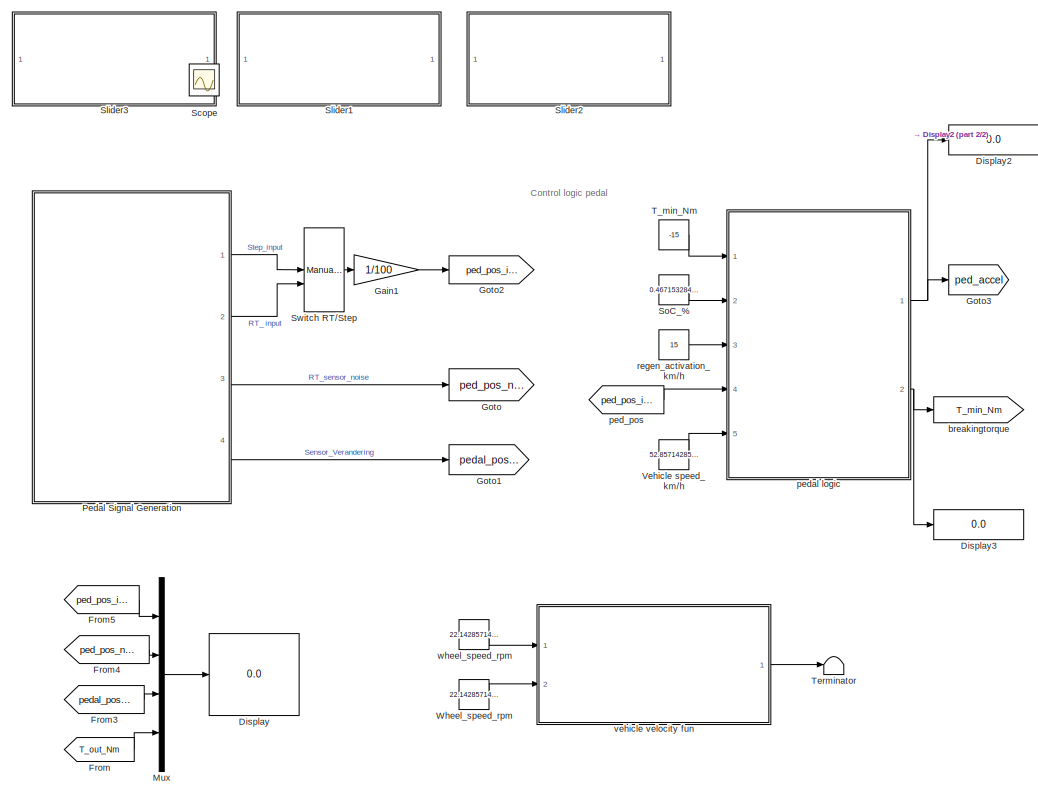
[diagram: root canvas - part 1/2, left side, full height]
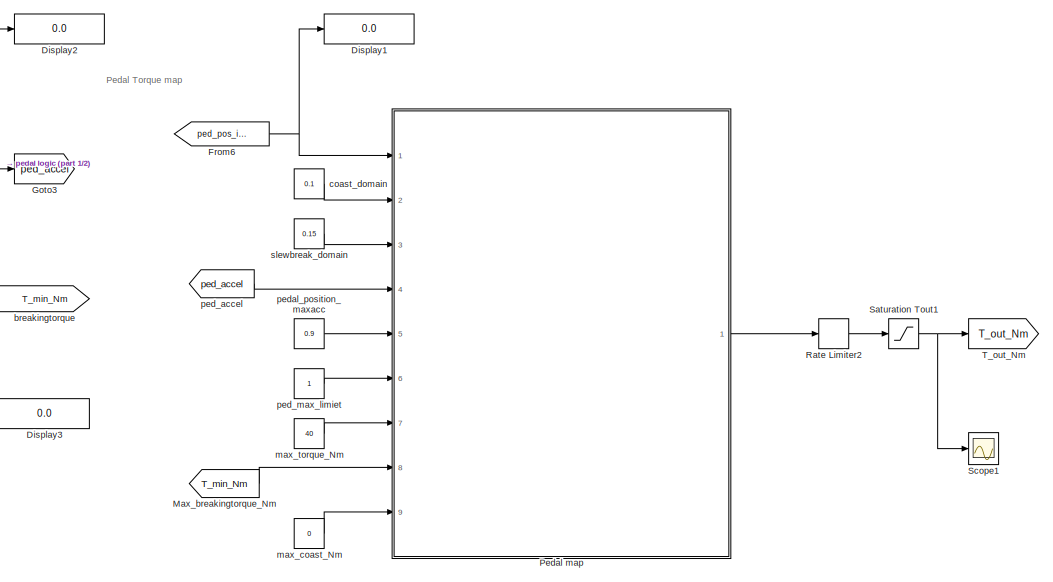
[diagram: root canvas - part 2/2, middle right region]
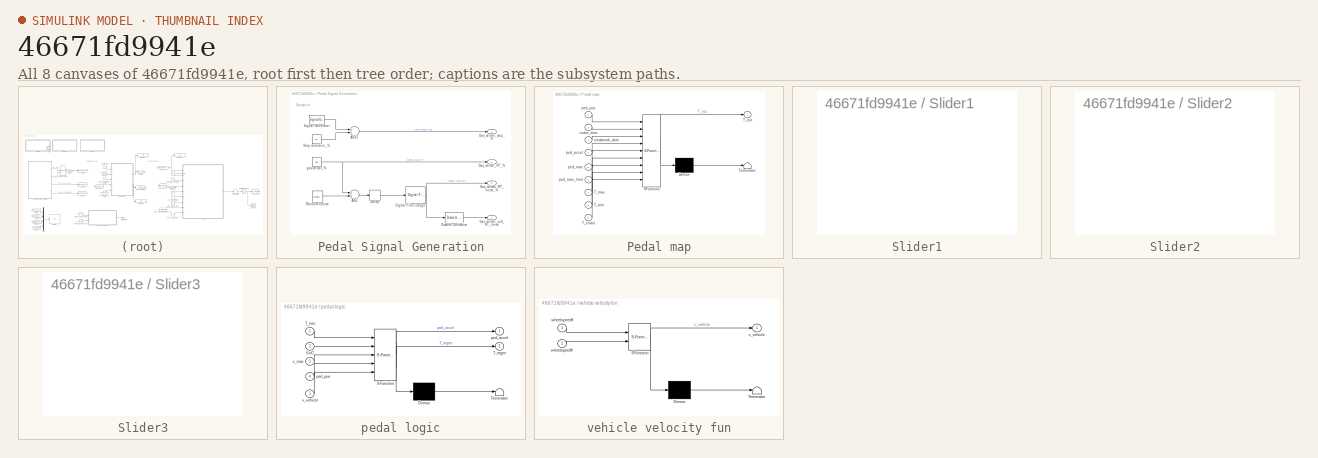
[diagram: thumbnail index - all 8 canvases of the model, root first then tree order]
MODEL slx_46671fd9941e
KIND model
CONFIG AbsTol = auto
CONFIG FixedStep = 0.001
CONFIG MaxStep = auto
CONFIG MinStep = auto
CONFIG RelTol = 1e-3
CONFIG SampleTimeConstraint = Unconstrained
CONFIG Solver = ode4
CONFIG SolverMode = Auto
CONFIG SolverName = ode4
CONFIG StartTime = 0.0
CONFIG StopTime = inf
BLOCK [Display] Display
  Decimation = 1
  Ports = [1]
BLOCK [Display] Display1
  Decimation = 1
  Ports = [1]
BLOCK [Display] Display2
  Decimation = 1
  Ports = [1]
BLOCK [Display] Display3
  Decimation = 1
  Ports = [1]
BLOCK [From] From
  GotoTag = T_out_Nm
BLOCK [From] From3
  GotoTag = pedal_pos_jerk
BLOCK [From] From4
  GotoTag = ped_pos_noise
BLOCK [From] From5
  GotoTag = ped_pos_idle
BLOCK [From] From6
  GotoTag = ped_pos_idle
BLOCK [Gain] Gain1
  Gain = 1/100
  OutDataTypeStr = Inherit: Inherit via internal rule
  ParamDataTypeStr = Inherit: Inherit via internal rule
  SaturateOnIntegerOverflow = off
BLOCK [Goto] Goto
  GotoTag = ped_pos_noise
BLOCK [Goto] Goto1
  GotoTag = pedal_pos_jerk
BLOCK [Goto] Goto2
  GotoTag = ped_pos_idle
BLOCK [Goto] Goto3
  GotoTag = ped_accel
BLOCK [From] Max_breakingtorque_Nm
  GotoTag = T_min_Nm
BLOCK [Mux] Mux
  DisplayOption = bar
  Ports = [4, 1]
BLOCK [SubSystem] Pedal Signal Generation
  Ports = [0, 4]
  RequestExecContextInheritance = off
  Variant = off
BLOCK [Sum] Pedal Signal Generation/Add
  InputSameDT = off
  OutDataTypeStr = Inherit: Inherit via internal rule
  Ports = [2, 1]
  SaturateOnIntegerOverflow = off
BLOCK [Sum] Pedal Signal Generation/Add1
  InputSameDT = off
  OutDataTypeStr = Inherit: Inherit via internal rule
  Ports = [2, 1]
  SaturateOnIntegerOverflow = off
BLOCK [Delay] Pedal Signal Generation/Delay
  InputPortMap = u0
  Ports = [1, 1]
  SampleTime = 0.001
BLOCK [Reference] Pedal Signal Generation/Digital Filter Design  REF=dsparch4/Digital
Filter Design
  Ports = [1, 1]
  SourceBlock = dsparch4/Digital\nFilter Design
  SourceType = Digital Filter Design
  UserDataPersistent = on
BLOCK [Reference] Pedal Signal Generation/Discrete Derivative  REF=simulink/Discrete/Discrete Derivative
  Ports = [1, 1]
  SourceBlock = simulink/Discrete/Discrete Derivative
  SourceType = Discrete Derivative
BLOCK [Outport] Pedal Signal Generation/Gas_sensor_RT_%
  IconDisplay = Port number
  Port = 2
BLOCK [Outport] Pedal Signal Generation/Gas_sensor_RT_noise_%
  IconDisplay = Port number
  Port = 3
BLOCK [Outport] Pedal Signal Generation/Gas_sensor_jerk_RT_noise
  IconDisplay = Port number
  Port = 4
BLOCK [Outport] Pedal Signal Generation/Gas_sensor_step_%
  IconDisplay = Port number
BLOCK [Reference] Pedal Signal Generation/Random Source  REF=dspsrcs4/Random
Source
  Ports = [0, 1]
  SourceBlock = dspsrcs4/Random\nSource
  SourceType = Random Source
  UserDataPersistent = on
BLOCK [SignalGenerator] Pedal Signal Generation/Signal Generator
  Amplitude = 50
  Frequency = 0.25
  Ports = [0, 1]
  WaveForm = square
BLOCK [Constant] Pedal Signal Generation/Step correction_%
  Value = 50
BLOCK [Constant] Pedal Signal Generation/gas sensor_% 
  Value = 100
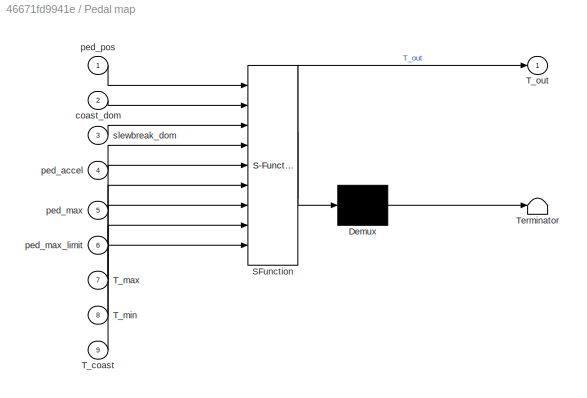
BLOCK [SubSystem] Pedal map
  ErrorFcn = Stateflow.Translate.translate
  PermitHierarchicalResolution = ExplicitOnly
  Ports = [9, 1]
  RequestExecContextInheritance = off
  SFBlockType = MATLAB Function
  TreatAsAtomicUnit = on
  Variant = off
BLOCK [Demux] Pedal map/ Demux 
  Outputs = 1
  Ports = [1, 1]
BLOCK [S-Function] Pedal map/ SFunction 
  EnableBusSupport = on
  FunctionName = sf_sfun
  PortCounts = [9 2]
  Ports = [9, 2]
  SFunctionDeploymentMode = off
  Tag = Stateflow S-Function RegenModelV2 1
BLOCK [Terminator] Pedal map/ Terminator 
BLOCK [Inport] Pedal map/T_coast
  IconDisplay = Port number
  Port = 9
BLOCK [Inport] Pedal map/T_max
  IconDisplay = Port number
  Port = 7
BLOCK [Inport] Pedal map/T_min
  IconDisplay = Port number
  Port = 8
BLOCK [Outport] Pedal map/T_out
  IconDisplay = Port number
BLOCK [Inport] Pedal map/coast_dom
  IconDisplay = Port number
  Port = 2
BLOCK [Inport] Pedal map/ped_accel
  IconDisplay = Port number
  Port = 4
BLOCK [Inport] Pedal map/ped_max
  IconDisplay = Port number
  Port = 5
BLOCK [Inport] Pedal map/ped_max_limit
  IconDisplay = Port number
  Port = 6
BLOCK [Inport] Pedal map/ped_pos
  IconDisplay = Port number
BLOCK [Inport] Pedal map/slewbreak_dom
  IconDisplay = Port number
  Port = 3
BLOCK [RateLimiter] Rate Limiter2
  FallingSlewLimit = -20
  RisingSlewLimit = 20
  SampleTimeMode = inherited
BLOCK [Saturate] Saturation Tout1
  InputPortMap = u0
  LowerLimit = -40
  Ports = [1, 1]
  UpperLimit = 40
BLOCK [Scope] Scope
  IOType = viewer
  Ports = []
  ScopeSpecificationString = C++SS(StrPVP('Open','off'),StrPVP('TimeRange','auto'),StrPVP('TickLabels','OneTimeTick'),StrPVP('ShowLegends','on'),StrPVP('LimitDataPoints','off'),StrPVP('MaxDataPoints','5000'),StrPVP('SaveToWorkspace','off'),StrPVP('SaveName','ScopeData'),StrPVP('YMin','-10'),StrPVP('YMax','110'),StrPVP('BlockParamSampleInput','off'),StrPVP('BlockParamSampleTime','-1'),StrPVP('ZoomMode','on'),StrPVP('Grid','on'...<+569ch>
BLOCK [Scope] Scope1
  Ports = [1]
  ScopeSpecificationString = Simulink.scopes.TimeScopeBlockCfg('CurrentConfiguration', extmgr.ConfigurationSet(extmgr.Configuration('Core','General UI',true),extmgr.Configuration('Core','Source UI',true),extmgr.Configuration('Sources','WiredSimulink',true,'DataLoggingVariableName','ScopeData1'),extmgr.Configuration('Visuals','Time Domain',true,'SerializedDisplays',{struct('MinYLimReal','-60','MaxYLimReal','60','YLabelReal',''...<+1795ch>
BLOCK [SubSystem] Slider1
  DialogController = hmiCreateDDGDialog
  IsWebBlock = on
  MaskHideContents = on
  Ports = []
  RequestExecContextInheritance = off
  Variant = off
BLOCK [SubSystem] Slider2
  DialogController = hmiCreateDDGDialog
  IsWebBlock = on
  MaskHideContents = on
  Ports = []
  RequestExecContextInheritance = off
  Variant = off
BLOCK [SubSystem] Slider3
  DialogController = hmiCreateDDGDialog
  IsWebBlock = on
  MaskHideContents = on
  Ports = []
  RequestExecContextInheritance = off
  Variant = off
BLOCK [Constant] SoC_%
  Value = 0.4671532846715328
BLOCK [ManualSwitch] Switch RT//Step
  CurrentSetting = 0
BLOCK [Constant] T_min_Nm
  Value = -15
BLOCK [Goto] T_out_Nm
  GotoTag = T_out_Nm
BLOCK [Terminator] Terminator
BLOCK [Constant] Vehicle speed_km//h
  Value = 52.85714285714285
BLOCK [Constant] Wheel_speed_rpm
  Value = 22.14285714285714
BLOCK [Goto] breakingtorque
  GotoTag = T_min_Nm
BLOCK [Constant] coast_domain
  Value = 0.1
BLOCK [Constant] max_coast_Nm
  Value = 0
BLOCK [Constant] max_torque_Nm
  Value = 40
BLOCK [From] ped_accel
  GotoTag = ped_accel
BLOCK [Constant] ped_max_limiet
BLOCK [From] ped_pos
  GotoTag = ped_pos_idle
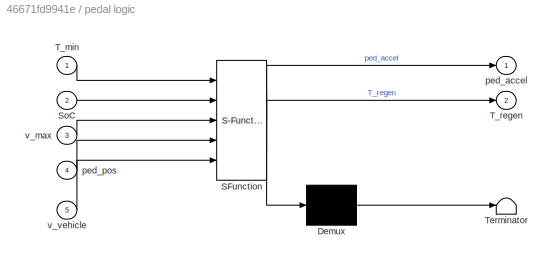
BLOCK [SubSystem] pedal logic
  ErrorFcn = Stateflow.Translate.translate
  PermitHierarchicalResolution = ExplicitOnly
  Ports = [5, 2]
  RequestExecContextInheritance = off
  SFBlockType = Chart
  TreatAsAtomicUnit = on
  Variant = off
BLOCK [Demux] pedal logic/ Demux 
  Outputs = 1
  Ports = [1, 1]
BLOCK [S-Function] pedal logic/ SFunction 
  EnableBusSupport = on
  FunctionName = sf_sfun
  PortCounts = [5 3]
  Ports = [5, 3]
  SFunctionDeploymentMode = off
  Tag = Stateflow S-Function RegenModelV2 5
BLOCK [Terminator] pedal logic/ Terminator 
BLOCK [Inport] pedal logic/SoC
  IconDisplay = Port number
  Port = 2
BLOCK [Inport] pedal logic/T_min
  IconDisplay = Port number
BLOCK [Outport] pedal logic/T_regen
  IconDisplay = Port number
  Port = 2
BLOCK [Outport] pedal logic/ped_accel
  IconDisplay = Port number
BLOCK [Inport] pedal logic/ped_pos
  IconDisplay = Port number
  Port = 4
BLOCK [Inport] pedal logic/v_max
  IconDisplay = Port number
  Port = 3
BLOCK [Inport] pedal logic/v_vehicle
  IconDisplay = Port number
  Port = 5
BLOCK [Constant] pedal_position_maxacc
  Value = 0.9
BLOCK [Constant] regen_activation_km//h
  Value = 15
BLOCK [Constant] slewbreak_domain
  Value = 0.15
BLOCK [SubSystem] vehicle velocity fun
  ErrorFcn = Stateflow.Translate.translate
  PermitHierarchicalResolution = ExplicitOnly
  Ports = [2, 1]
  RequestExecContextInheritance = off
  SFBlockType = MATLAB Function
  TreatAsAtomicUnit = on
  Variant = off
BLOCK [Demux] vehicle velocity fun/ Demux 
  Outputs = 1
  Ports = [1, 1]
BLOCK [S-Function] vehicle velocity fun/ SFunction 
  EnableBusSupport = on
  FunctionName = sf_sfun
  PortCounts = [2 2]
  Ports = [2, 2]
  SFunctionDeploymentMode = off
  Tag = Stateflow S-Function RegenModelV2 4
BLOCK [Terminator] vehicle velocity fun/ Terminator 
BLOCK [Outport] vehicle velocity fun/v_vehicle
  IconDisplay = Port number
BLOCK [Inport] vehicle velocity fun/wheelspeedfl
  IconDisplay = Port number
BLOCK [Inport] vehicle velocity fun/wheelspeedfr
  IconDisplay = Port number
  Port = 2
BLOCK [Constant] wheel_speed_rpm
  Value = 22.14285714285714
ANNOTATION (root): Control logic pedal
ANNOTATION (root): Pedal Torque map
ANNOTATION Pedal Signal Generation: Sensor in
LINE From3:1 -> Mux:3
LINE From4:1 -> Mux:2
LINE From5:1 -> Mux:1
NET From6:1 -> Display1:1, Pedal map:1
LINE From:1 -> Mux:4
LINE Gain1:1 -> Goto2:1
LINE Max_breakingtorque_Nm:1 -> Pedal map:8
LINE Mux:1 -> Display:1
LINE Pedal Signal Generation/Add1:1 -> Pedal Signal Generation/Gas_sensor_step_%:1
LINE Pedal Signal Generation/Add:1 -> Pedal Signal Generation/Delay:1
LINE Pedal Signal Generation/Delay:1 -> Pedal Signal Generation/Digital Filter Design:1
NET Pedal Signal Generation/Digital Filter Design:1 -> Pedal Signal Generation/Discrete Derivative:1, Pedal Signal Generation/Gas_sensor_RT_noise_%:1
LINE Pedal Signal Generation/Discrete Derivative:1 -> Pedal Signal Generation/Gas_sensor_jerk_RT_noise:1
LINE Pedal Signal Generation/Random Source:1 -> Pedal Signal Generation/Add:2
LINE Pedal Signal Generation/Signal Generator:1 -> Pedal Signal Generation/Add1:1
LINE Pedal Signal Generation/Step correction_%:1 -> Pedal Signal Generation/Add1:2
NET Pedal Signal Generation/gas sensor_% :1 -> Pedal Signal Generation/Add:1, Pedal Signal Generation/Gas_sensor_RT_%:1
LINE Pedal Signal Generation:1 -> Switch RT//Step:1
LINE Pedal Signal Generation:2 -> Switch RT//Step:2
LINE Pedal Signal Generation:3 -> Goto:1
LINE Pedal Signal Generation:4 -> Goto1:1
LINE Pedal map:1 -> Rate Limiter2:1
LINE Rate Limiter2:1 -> Saturation Tout1:1
NET Saturation Tout1:1 -> Scope1:1, T_out_Nm:1
LINE SoC_%:1 -> pedal logic:2
LINE Switch RT//Step:1 -> Gain1:1
LINE T_min_Nm:1 -> pedal logic:1
LINE Vehicle speed_km//h:1 -> pedal logic:5
LINE Wheel_speed_rpm:1 -> vehicle velocity fun:2
LINE coast_domain:1 -> Pedal map:2
LINE max_coast_Nm:1 -> Pedal map:9
LINE max_torque_Nm:1 -> Pedal map:7
LINE ped_accel:1 -> Pedal map:4
LINE ped_max_limiet:1 -> Pedal map:6
LINE ped_pos:1 -> pedal logic:4
NET pedal logic:1 -> Display2:1, Goto3:1
NET pedal logic:2 -> Display3:1, breakingtorque:1
LINE pedal_position_maxacc:1 -> Pedal map:5
LINE regen_activation_km//h:1 -> pedal logic:3
LINE slewbreak_domain:1 -> Pedal map:3
LINE vehicle velocity fun:1 -> Terminator:1
LINE wheel_speed_rpm:1 -> vehicle velocity fun:1
note: NET lines group one-source signal fan-out (src -> all destinations, sorted); 1:1 wires keep LINE
CHART Pedal map states=1 transitions=1
  STATE_LABEL 'eML_blk_kernel()'
  STATE_LABEL 'SCRIPT:\nfunction T_out = Pedalmap_eq(ped_pos,coast_dom,slewbreak_dom,ped_accel,ped_max,ped_max_limit,T_max,T_min,T_coast)\n%%Accelerator pedal mapping:\n\nped_regen=ped_accel-coast_dom; %pedal postion - start regen - variable in function of velocity\nped_zero=ped_regen-slewbreak_dom; %pedal postion - start max regen - variable in function of velocity\n\nslewrate_acc=(T_max-T_coast)/(ped_max-ped_accel); ...<+503ch>'
CHART vehicle velocity fun states=1 transitions=1
  STATE_LABEL 'eML_blk_kernel()'
  STATE_LABEL 'SCRIPT:\nfunction v_vehicle = vehicle_velocity(wheelspeedfl,wheelspeedfr)\n%% vehicle speed estimation\nr=0.0254;\n\nv_vehicle= (wheelspeedfl+wheelspeedfr)/2 *r;\n'
CHART pedal logic states=4 transitions=6
  STATE_LABEL 'Driving'
  STATE_LABEL 'Disable_regen %SoC is to high.\nentry:\nped_accel=0.45;\nT_regen=0;'
  STATE_LABEL 'Activate_regen\nentry:\nped_accel=0.45;\nT0= -5; %Regentorque at v_max [Nm]\nduring:\n% velocity dependant braking torque\nif v_vehicle<15\n    T_regen=T_min/15\nelseif v_vehicle<50\n    T_regen=T_min\nelse\n    T_regen=(T_min-T0)/(50-100)*(v_vehicle-100)+T0\nend\n'
  STATE_LABEL '[SoC<0.95]'
  STATE_LABEL '[SoC>0.95]'
  STATE_LABEL 'Disable_regen %SoC is to high.\nentry:\nped_accel=0.45;\nT_regen=0;'
  STATE_LABEL 'Activate_regen\nentry:\nped_accel=0.45;\nT0= -5; %Regentorque at v_max [Nm]\nduring:\n% velocity dependant braking torque\nif v_vehicle<15\n    T_regen=T_min/15\nelseif v_vehicle<50\n    T_regen=T_min\nelse\n    T_regen=(T_min-T0)/(50-100)*(v_vehicle-100)+T0\nend\n'
  STATE_LABEL 'Standstill\nentry:\nT_regen=0;\nped_accel=0.1; %\nduring:\n%velocity dependent coasting until v_max\nif ped_pos>0.1\n    ped_accel=min(ped_pos* (v_vehicle/v_max),0.45); %Offset of 0.1\nend\nexit:\nped_accel=0.45;\n'
